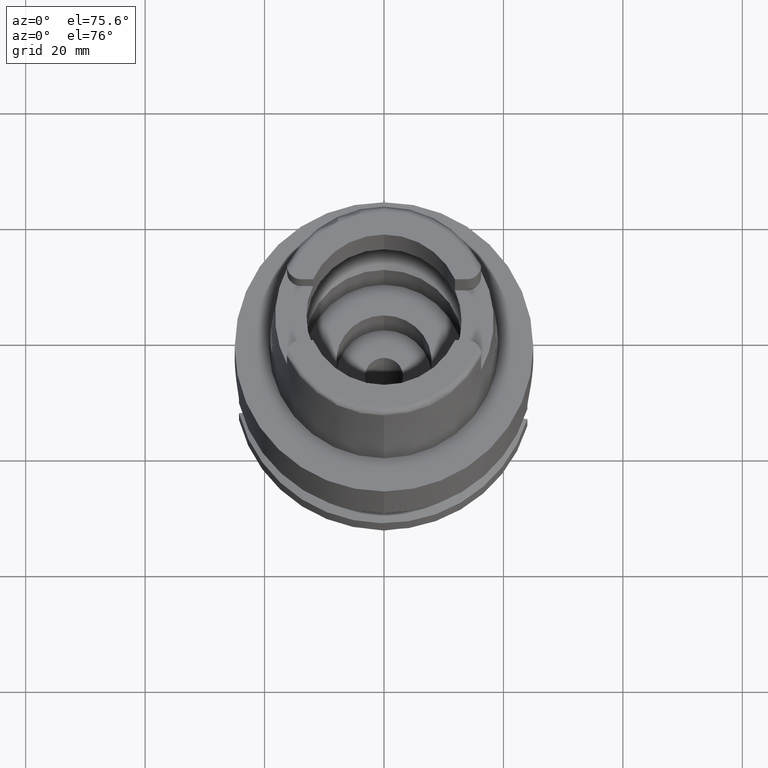
[diagram: clean part render]
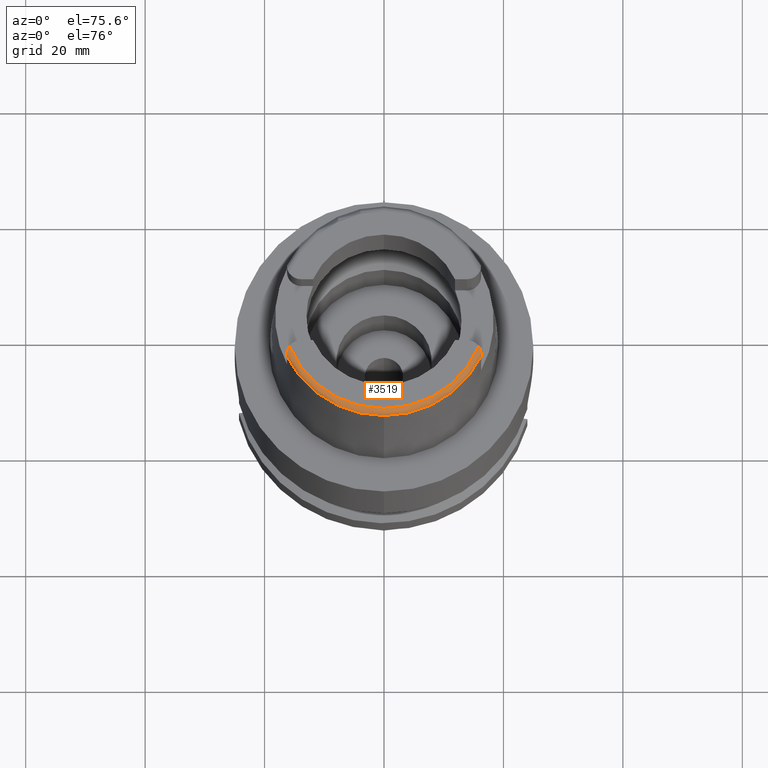
[diagram: same view with one face highlighted and labeled with its STEP entity id]
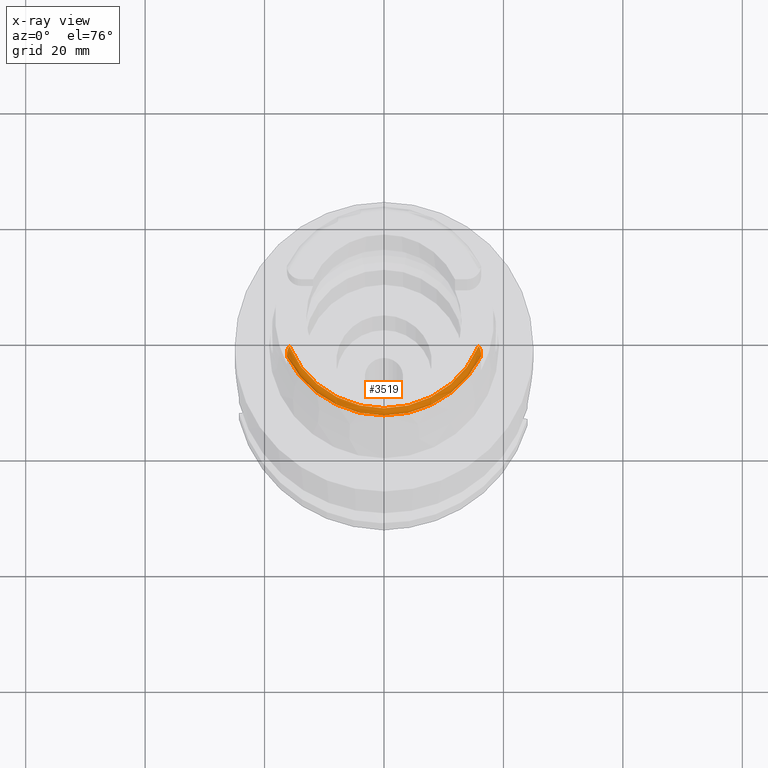
[diagram: x-ray of the same camera — body ghosted, the highlighted face saturated]
A machine part, auxiliary view. The second image highlights one B-rep face of the part: STEP entity #3519.
The next image is the same camera in x-ray: the body ghosted, the highlighted face saturated — about 0% of this face is hidden behind the body in this view.
In plain terms, the highlighted toroidal blend (fillet) surface has major radius 17.0488 mm and minor (blend) radius 1 mm.
Its self-contained STEP definition (entity closure, byte-faithful):
#18 = CARTESIAN_POINT ( 'NONE',  ( 0.0000000000000000000, 0.0000000000000000000, 24.04993752584000077 ) ) ;
#63 = ORIENTED_EDGE ( 'NONE', *, *, #4776, .F. ) ;
#167 = CIRCLE ( 'NONE', #2563, 17.04875252221999560 ) ;
#305 = EDGE_LOOP ( 'NONE', ( #901, #63, #2146, #2921, #2470, #2796, #2077 ) ) ;
#530 = CARTESIAN_POINT ( 'NONE',  ( 0.0000000000000000000, 0.0000000000000000000, 24.04993752584000077 ) ) ;
#657 = CARTESIAN_POINT ( 'NONE',  ( -16.24635712758224670, -7.393781645880040720, 24.59921812276285635 ) ) ;
#660 = CARTESIAN_POINT ( 'NONE',  ( 16.26000000000000156, -7.649999999999999467, 24.38968791394999869 ) ) ;
#864 = CARTESIAN_POINT ( 'NONE',  ( 16.18554765314596722, -7.055549013118685764, 24.79584979289008473 ) ) ;
#897 = CARTESIAN_POINT ( 'NONE',  ( 16.20091662814513711, -7.119167326268691198, 24.76403663246678377 ) ) ;
#901 = ORIENTED_EDGE ( 'NONE', *, *, #3898, .F. ) ;
#958 = DIRECTION ( 'NONE',  ( -0.0008255998758100714869, -0.9999996591923645539, 0.0000000000000000000 ) ) ;
#1015 = CARTESIAN_POINT ( 'NONE',  ( -16.20469742443467354, -7.122003431784945882, 24.76574823760724087 ) ) ;
#1146 = DIRECTION ( 'NONE',  ( 0.0000000000000000000, 0.0000000000000000000, -1.000000000000000000 ) ) ;
#1282 = CARTESIAN_POINT ( 'NONE',  ( 15.87413303637173811, -6.349542491729747162, 25.00000000000000711 ) ) ;
#1297 = CARTESIAN_POINT ( 'NONE',  ( 0.0000000000000000000, 0.0000000000000000000, 24.00000000000000000 ) ) ;
#1315 = VERTEX_POINT ( 'NONE', #4045 ) ;
#1317 = AXIS2_PLACEMENT_3D ( 'NONE', #1297, #5083, #958 ) ;
#1323 = DIRECTION ( 'NONE',  ( 0.0000000000000000000, 0.0000000000000000000, -1.000000000000000000 ) ) ;
#1343 = CARTESIAN_POINT ( 'NONE',  ( 15.99515925239087011, -6.558466050331854369, 24.97133569990850077 ) ) ;
#1419 = DIRECTION ( 'NONE',  ( 0.9009559685361676618, -0.4339105239090842447, 0.0000000000000000000 ) ) ;
#1435 = DIRECTION ( 'NONE',  ( 0.9291773910543710269, -0.3696341109169885564, 0.0000000000000000000 ) ) ;
#1441 = CARTESIAN_POINT ( 'NONE',  ( -16.25906987360403377, -7.568097219120181407, 24.46715925365684541 ) ) ;
#1456 = CARTESIAN_POINT ( 'NONE',  ( -16.26000000000000156, -7.756986335163649215, 24.28204966589522584 ) ) ;
#1463 = CARTESIAN_POINT ( 'NONE',  ( -15.84131538932999739, -6.301800480795000325, 25.00000000000000000 ) ) ;
#1493 = CARTESIAN_POINT ( 'NONE',  ( -16.25999999999999801, -7.611324421723295153, 24.42859915884932320 ) ) ;
#1526 = CARTESIAN_POINT ( 'NONE',  ( -16.09036914566732079, -6.766937296843208216, 24.91400954781434862 ) ) ;
#1567 = CARTESIAN_POINT ( 'NONE',  ( 16.26000240863000101, -7.831001008806000030, 24.04998242185999757 ) ) ;
#1619 = CARTESIAN_POINT ( 'NONE',  ( 16.26000000000000156, -7.649999999999999467, 24.38968791394999869 ) ) ;
#1731 = DIRECTION ( 'NONE',  ( -0.0008255998758095713444, -0.9999996591923644429, 0.0000000000000000000 ) ) ;
#1808 = CARTESIAN_POINT ( 'NONE',  ( 16.22521918517965034, -7.243431064461461233, 24.69466736655911987 ) ) ;
#1819 = EDGE_CURVE ( 'NONE', #3529, #4577, #167, .T. ) ;
#1854 = AXIS2_PLACEMENT_3D ( 'NONE', #18, #1323, #1731 ) ;
#1879 = CARTESIAN_POINT ( 'NONE',  ( -16.26000000000000156, -7.817328874476982215, 24.16879002974189206 ) ) ;
#1887 = CARTESIAN_POINT ( 'NONE',  ( -15.96835036131653851, -6.501566890543609922, 24.98609789577228568 ) ) ;
#1918 = EDGE_CURVE ( 'NONE', #1315, #2261, #4583, .T. ) ;
#1972 = CARTESIAN_POINT ( 'NONE',  ( 0.0000000000000000000, -18.04750486565000145, 24.04993752584000077 ) ) ;
#2032 = CIRCLE ( 'NONE', #1854, 18.04750486564999434 ) ;
#2072 = VERTEX_POINT ( 'NONE', #1619 ) ;
#2077 = ORIENTED_EDGE ( 'NONE', *, *, #1918, .F. ) ;
#2082 = CARTESIAN_POINT ( 'NONE',  ( 16.26000000000000156, -7.756972648943077253, 24.28206343549639712 ) ) ;
#2145 = FACE_OUTER_BOUND ( 'NONE', #305, .T. ) ;
#2146 = ORIENTED_EDGE ( 'NONE', *, *, #4982, .F. ) ;
#2181 = CARTESIAN_POINT ( 'NONE',  ( 16.26000000000000156, -7.572640434639269280, 24.46751886378893204 ) ) ;
#2261 = VERTEX_POINT ( 'NONE', #4054 ) ;
#2305 = CARTESIAN_POINT ( 'NONE',  ( -16.26000000000000156, -7.649999999999999467, 24.38968791394999869 ) ) ;
#2354 = CARTESIAN_POINT ( 'NONE',  ( -16.07770717467570165, -6.735888751605533464, 24.92417466035864493 ) ) ;
#2388 = AXIS2_PLACEMENT_3D ( 'NONE', #530, #3561, #1419 ) ;
#2470 = ORIENTED_EDGE ( 'NONE', *, *, #1819, .T. ) ;
#2562 = TOROIDAL_SURFACE ( 'NONE', #1317, 17.04875252221999560, 1.000000000000000000 ) ;
#2563 = AXIS2_PLACEMENT_3D ( 'NONE', #3076, #1146, #1435 ) ;
#2619 = EDGE_CURVE ( 'NONE', #2261, #4577, #2667, .T. ) ;
#2620 = CARTESIAN_POINT ( 'NONE',  ( 16.00842313982708731, -6.584488347359447324, 24.96566249860756415 ) ) ;
#2632 = CARTESIAN_POINT ( 'NONE',  ( 15.84131538932999739, -6.301800480794000237, 25.00000000000000000 ) ) ;
#2667 = B_SPLINE_CURVE_WITH_KNOTS ( 'NONE', 3,
 ( #2305, #1493, #1441, #2698, #4388, #4024, #657, #3659, #1015, #3143, #2778, #1526, #2354, #4046, #4829, #1887, #3580, #1463 ),
 .UNSPECIFIED., .F., .F.,
 ( 4, 2, 2, 2, 2, 2, 2, 2, 4 ),
 ( 0.0000000000000000000, 0.1250000000000009159, 0.1875000000000015543, 0.2500000000000021649, 0.5000000000000025535, 0.6250000000000021094, 0.6875000000000007772, 0.7499999999999994449, 1.000000000000000000 ),
 .UNSPECIFIED. ) ;
#2680 = CARTESIAN_POINT ( 'NONE',  ( 15.96626069893459388, -6.504198393117823329, 24.98175908175995730 ) ) ;
#2698 = CARTESIAN_POINT ( 'NONE',  ( -16.25516844966448460, -7.496555488954571800, 24.52447267073041814 ) ) ;
#2740 = EDGE_CURVE ( 'NONE', #3529, #2072, #2799, .T. ) ;
#2778 = CARTESIAN_POINT ( 'NONE',  ( -16.12647964473669759, -6.861168460897768995, 24.88071074308764352 ) ) ;
#2796 = ORIENTED_EDGE ( 'NONE', *, *, #2619, .F. ) ;
#2799 = B_SPLINE_CURVE_WITH_KNOTS ( 'NONE', 3,
 ( #4784, #1282, #3870, #2987, #2680, #1343, #2620, #4288, #4369, #864, #897, #4342, #1808, #4311, #5149, #3509, #2181, #3043 ),
 .UNSPECIFIED., .F., .F.,
 ( 4, 2, 2, 2, 2, 2, 2, 2, 4 ),
 ( 0.0000000000000000000, 0.1250000000000008327, 0.1874999999999994726, 0.2499999999999981126, 0.5000000000000035527, 0.6250000000000056621, 0.6875000000000045519, 0.7500000000000035527, 1.000000000000000000 ),
 .UNSPECIFIED. ) ;
#2839 = CIRCLE ( 'NONE', #2388, 18.04750486565000855 ) ;
#2921 = ORIENTED_EDGE ( 'NONE', *, *, #2740, .F. ) ;
#2987 = CARTESIAN_POINT ( 'NONE',  ( 15.95142481241509635, -6.477605759254378093, 24.98610215753139485 ) ) ;
#3022 = VERTEX_POINT ( 'NONE', #1567 ) ;
#3043 = CARTESIAN_POINT ( 'NONE',  ( 16.26000000000000156, -7.649999999999999467, 24.38968791394999869 ) ) ;
#3076 = CARTESIAN_POINT ( 'NONE',  ( 0.0000000000000000000, 0.0000000000000000000, 25.00000000000000000 ) ) ;
#3143 = CARTESIAN_POINT ( 'NONE',  ( -16.14805198108727780, -6.925438178006111833, 24.85477358381137947 ) ) ;
#3400 = CARTESIAN_POINT ( 'NONE',  ( -15.84131538932999739, -6.301800480795000325, 25.00000000000000000 ) ) ;
#3509 = CARTESIAN_POINT ( 'NONE',  ( 16.25642386085856828, -7.476990921614447672, 24.54392857600013755 ) ) ;
#3519 = ADVANCED_FACE ( 'NONE', ( #2145 ), #2562, .T. ) ;
#3529 = VERTEX_POINT ( 'NONE', #2632 ) ;
#3561 = DIRECTION ( 'NONE',  ( 0.0000000000000000000, 0.0000000000000000000, -1.000000000000000000 ) ) ;
#3580 = CARTESIAN_POINT ( 'NONE',  ( -15.90697716413406049, -6.397323025924977813, 25.00000000000000000 ) ) ;
#3659 = CARTESIAN_POINT ( 'NONE',  ( -16.22839938445622820, -7.245373338692166598, 24.69783542017002631 ) ) ;
#3870 = CARTESIAN_POINT ( 'NONE',  ( 15.90587928793619987, -6.399460457402196489, 24.99652553938284782 ) ) ;
#3898 = EDGE_CURVE ( 'NONE', #4908, #1315, #2032, .T. ) ;
#4015 = CARTESIAN_POINT ( 'NONE',  ( -16.25999847872000004, -7.831027617939998464, 24.04990900549000088 ) ) ;
#4024 = CARTESIAN_POINT ( 'NONE',  ( -16.24895392500580371, -7.419475833077118665, 24.58134715018924155 ) ) ;
#4045 = CARTESIAN_POINT ( 'NONE',  ( -16.25999847872000004, -7.831027617939998464, 24.04990900549000088 ) ) ;
#4046 = CARTESIAN_POINT ( 'NONE',  ( -16.05118233472936851, -6.674559858616913033, 24.94263590738467329 ) ) ;
#4054 = CARTESIAN_POINT ( 'NONE',  ( -16.26000000000000156, -7.649999999999999467, 24.38968791394999869 ) ) ;
#4288 = CARTESIAN_POINT ( 'NONE',  ( 16.08058871170394610, -6.733805901051367115, 24.92888236854065198 ) ) ;
#4311 = CARTESIAN_POINT ( 'NONE',  ( 16.23496764414059257, -7.304343058900098384, 24.65774936608152856 ) ) ;
#4342 = CARTESIAN_POINT ( 'NONE',  ( 16.21967970842116102, -7.212612079982116065, 24.71248826179113323 ) ) ;
#4369 = CARTESIAN_POINT ( 'NONE',  ( 16.12968302773886720, -6.861701768600365625, 24.88363201407858227 ) ) ;
#4388 = CARTESIAN_POINT ( 'NONE',  ( -16.25344789661007638, -7.471592678364737949, 24.54348935556531330 ) ) ;
#4577 = VERTEX_POINT ( 'NONE', #3400 ) ;
#4583 = B_SPLINE_CURVE_WITH_KNOTS ( 'NONE', 3,
 ( #4015, #1879, #1456, #5189 ),
 .UNSPECIFIED., .F., .F.,
 ( 4, 4 ),
 ( 0.0000000000000000000, 1.000000000000000000 ),
 .UNSPECIFIED. ) ;
#4596 = CARTESIAN_POINT ( 'NONE',  ( 16.26000240863000101, -7.831001008806000030, 24.04998242185999757 ) ) ;
#4776 = EDGE_CURVE ( 'NONE', #3022, #4908, #2839, .T. ) ;
#4784 = CARTESIAN_POINT ( 'NONE',  ( 15.84131538932999739, -6.301800480794000237, 25.00000000000000000 ) ) ;
#4829 = CARTESIAN_POINT ( 'NONE',  ( -16.03651419471951556, -6.642613210886748831, 24.95134263520300166 ) ) ;
#4908 = VERTEX_POINT ( 'NONE', #1972 ) ;
#4916 = CARTESIAN_POINT ( 'NONE',  ( 16.26000000000000156, -7.817306318545076849, 24.16882827146639912 ) ) ;
#4982 = EDGE_CURVE ( 'NONE', #2072, #3022, #5129, .T. ) ;
#5083 = DIRECTION ( 'NONE',  ( 0.0000000000000000000, 0.0000000000000000000, 1.000000000000000000 ) ) ;
#5129 = B_SPLINE_CURVE_WITH_KNOTS ( 'NONE', 3,
 ( #660, #2082, #4916, #4596 ),
 .UNSPECIFIED., .F., .F.,
 ( 4, 4 ),
 ( 0.0000000000000000000, 1.000000000000000000 ),
 .UNSPECIFIED. ) ;
#5149 = CARTESIAN_POINT ( 'NONE',  ( 16.23935655815602175, -7.335923117350125366, 24.63766416922946689 ) ) ;
#5189 = CARTESIAN_POINT ( 'NONE',  ( -16.26000000000000156, -7.649999999999999467, 24.38968791394999869 ) ) ;